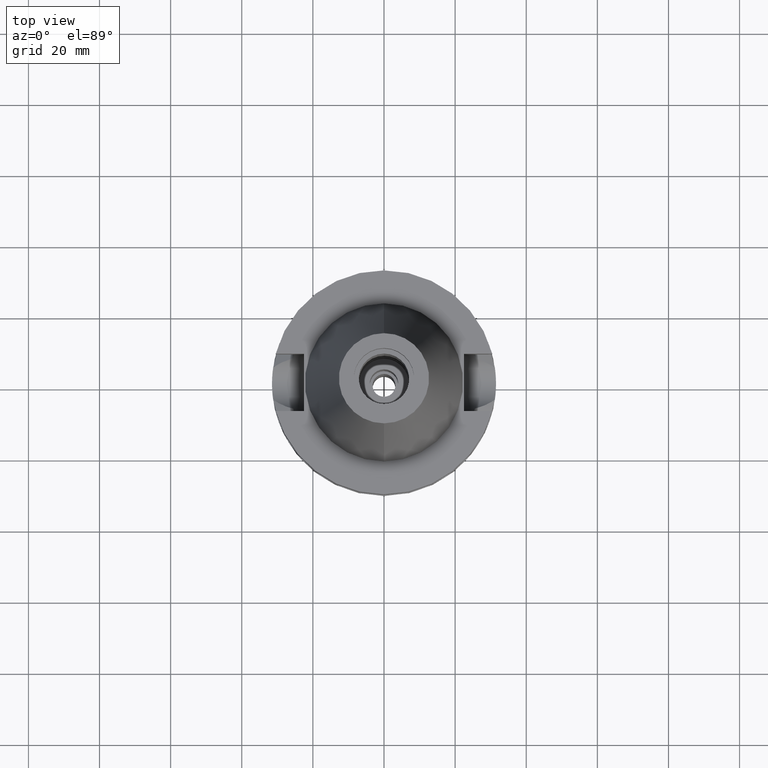
[diagram: clean part render]
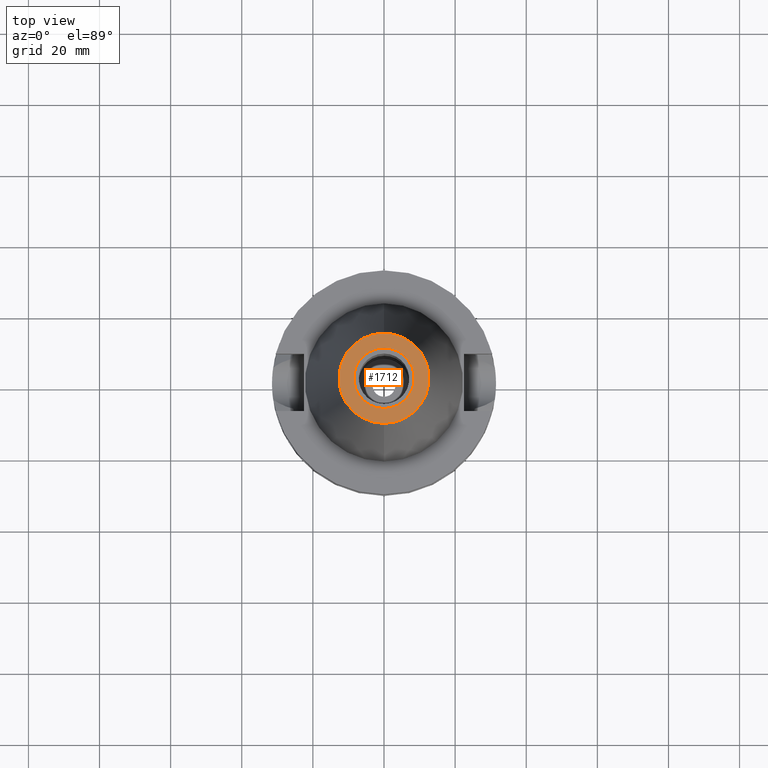
[diagram: same view with one face highlighted and labeled with its STEP entity id]
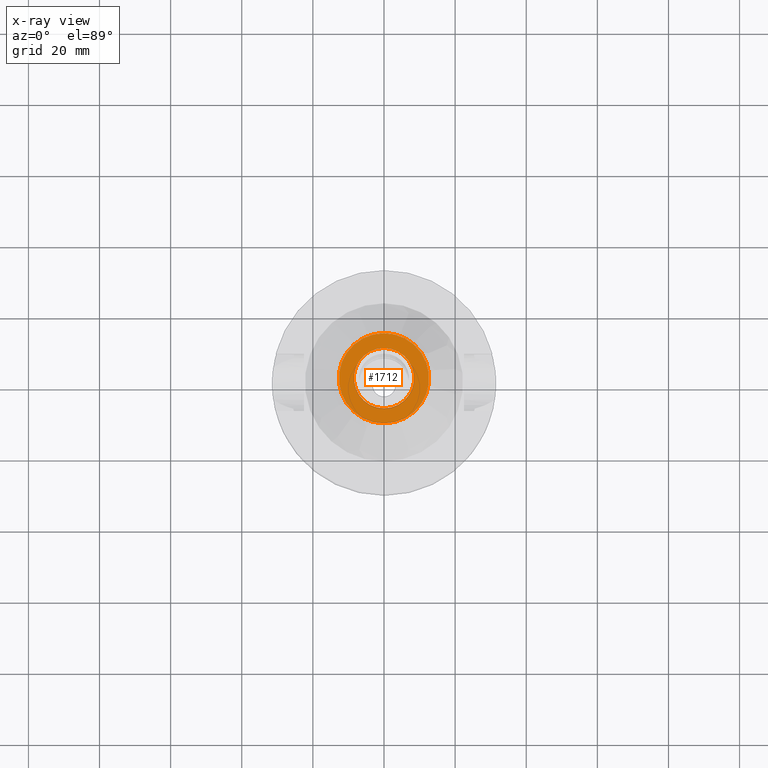
[diagram: x-ray of the same camera — body ghosted, the highlighted face saturated]
A machine part, top view. The second image highlights one B-rep face of the part: STEP entity #1712.
The next image is the same camera in x-ray: the body ghosted, the highlighted face saturated — about 0% of this face is hidden behind the body in this view.
In plain terms, the highlighted planar face has unit normal (0, 0, -1).
Its self-contained STEP definition (entity closure, byte-faithful):
#2 = DIRECTION ( 'NONE',  ( 0.0000000000000000000, -1.000000000000000000, 0.0000000000000000000 ) ) ;
#8 = DIRECTION ( 'NONE',  ( 0.0000000000000000000, 1.000000000000000000, 0.0000000000000000000 ) ) ;
#47 = FACE_BOUND ( 'NONE', #1113, .T. ) ;
#292 = EDGE_CURVE ( 'NONE', #2059, #1248, #2518, .T. ) ;
#471 = EDGE_LOOP ( 'NONE', ( #1643, #2036 ) ) ;
#492 = AXIS2_PLACEMENT_3D ( 'NONE', #2548, #633, #1104 ) ;
#633 = DIRECTION ( 'NONE',  ( 0.0000000000000000000, 0.0000000000000000000, -1.000000000000000000 ) ) ;
#755 = PLANE ( 'NONE',  #1627 ) ;
#760 = AXIS2_PLACEMENT_3D ( 'NONE', #2842, #2149, #3063 ) ;
#856 = CARTESIAN_POINT ( 'NONE',  ( 0.0000000000000000000, 0.0000000000000000000, 65.40000000000000568 ) ) ;
#1104 = DIRECTION ( 'NONE',  ( 0.0000000000000000000, -1.000000000000000000, 0.0000000000000000000 ) ) ;
#1113 = EDGE_LOOP ( 'NONE', ( #2139, #1552 ) ) ;
#1116 = CARTESIAN_POINT ( 'NONE',  ( 0.0000000000000000000, 8.500000000000000000, 65.40000000000000568 ) ) ;
#1212 = FACE_OUTER_BOUND ( 'NONE', #471, .T. ) ;
#1248 = VERTEX_POINT ( 'NONE', #1283 ) ;
#1283 = CARTESIAN_POINT ( 'NONE',  ( 0.0000000000000000000, -8.500000000000000000, 65.40000000000000568 ) ) ;
#1318 = DIRECTION ( 'NONE',  ( 0.0000000000000000000, 1.000000000000000000, 0.0000000000000000000 ) ) ;
#1356 = DIRECTION ( 'NONE',  ( 0.0000000000000000000, 0.0000000000000000000, -1.000000000000000000 ) ) ;
#1552 = ORIENTED_EDGE ( 'NONE', *, *, #2219, .F. ) ;
#1604 = AXIS2_PLACEMENT_3D ( 'NONE', #3112, #2639, #8 ) ;
#1627 = AXIS2_PLACEMENT_3D ( 'NONE', #1714, #2165, #2 ) ;
#1643 = ORIENTED_EDGE ( 'NONE', *, *, #2909, .F. ) ;
#1712 = ADVANCED_FACE ( 'NONE', ( #1212, #47 ), #755, .F. ) ;
#1714 = CARTESIAN_POINT ( 'NONE',  ( 0.0000000000000000000, 0.0000000000000000000, 65.40000000000000568 ) ) ;
#1735 = CARTESIAN_POINT ( 'NONE',  ( 0.0000000000000000000, 12.68766899429999917, 65.40000000000000568 ) ) ;
#2036 = ORIENTED_EDGE ( 'NONE', *, *, #2985, .F. ) ;
#2059 = VERTEX_POINT ( 'NONE', #1116 ) ;
#2139 = ORIENTED_EDGE ( 'NONE', *, *, #292, .F. ) ;
#2149 = DIRECTION ( 'NONE',  ( 0.0000000000000000000, 0.0000000000000000000, 1.000000000000000000 ) ) ;
#2165 = DIRECTION ( 'NONE',  ( 0.0000000000000000000, 0.0000000000000000000, -1.000000000000000000 ) ) ;
#2219 = EDGE_CURVE ( 'NONE', #1248, #2059, #2673, .T. ) ;
#2518 = CIRCLE ( 'NONE', #1604, 8.500000000000000000 ) ;
#2548 = CARTESIAN_POINT ( 'NONE',  ( 0.0000000000000000000, 0.0000000000000000000, 65.40000000000000568 ) ) ;
#2639 = DIRECTION ( 'NONE',  ( 0.0000000000000000000, 0.0000000000000000000, 1.000000000000000000 ) ) ;
#2673 = CIRCLE ( 'NONE', #760, 8.500000000000000000 ) ;
#2688 = CARTESIAN_POINT ( 'NONE',  ( 0.0000000000000000000, -12.68766899429999917, 65.40000000000000568 ) ) ;
#2761 = VERTEX_POINT ( 'NONE', #1735 ) ;
#2806 = CIRCLE ( 'NONE', #492, 12.68766899429999917 ) ;
#2842 = CARTESIAN_POINT ( 'NONE',  ( 0.0000000000000000000, 0.0000000000000000000, 65.40000000000000568 ) ) ;
#2845 = VERTEX_POINT ( 'NONE', #2688 ) ;
#2909 = EDGE_CURVE ( 'NONE', #2761, #2845, #2952, .T. ) ;
#2952 = CIRCLE ( 'NONE', #3109, 12.68766899429999917 ) ;
#2985 = EDGE_CURVE ( 'NONE', #2845, #2761, #2806, .T. ) ;
#3063 = DIRECTION ( 'NONE',  ( 0.0000000000000000000, -1.000000000000000000, 0.0000000000000000000 ) ) ;
#3109 = AXIS2_PLACEMENT_3D ( 'NONE', #856, #1356, #1318 ) ;
#3112 = CARTESIAN_POINT ( 'NONE',  ( 0.0000000000000000000, 0.0000000000000000000, 65.40000000000000568 ) ) ;